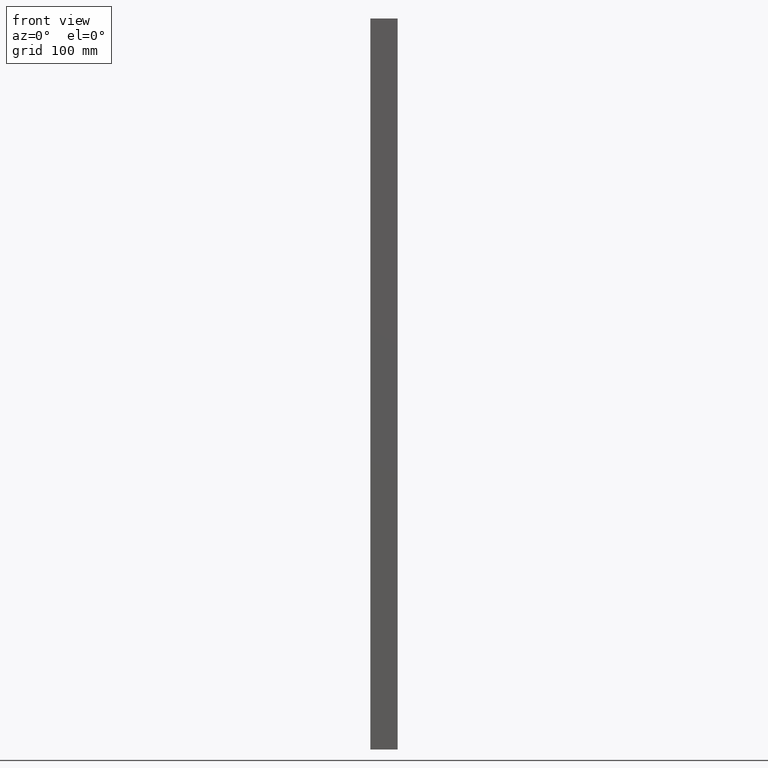
[diagram: clean part render]
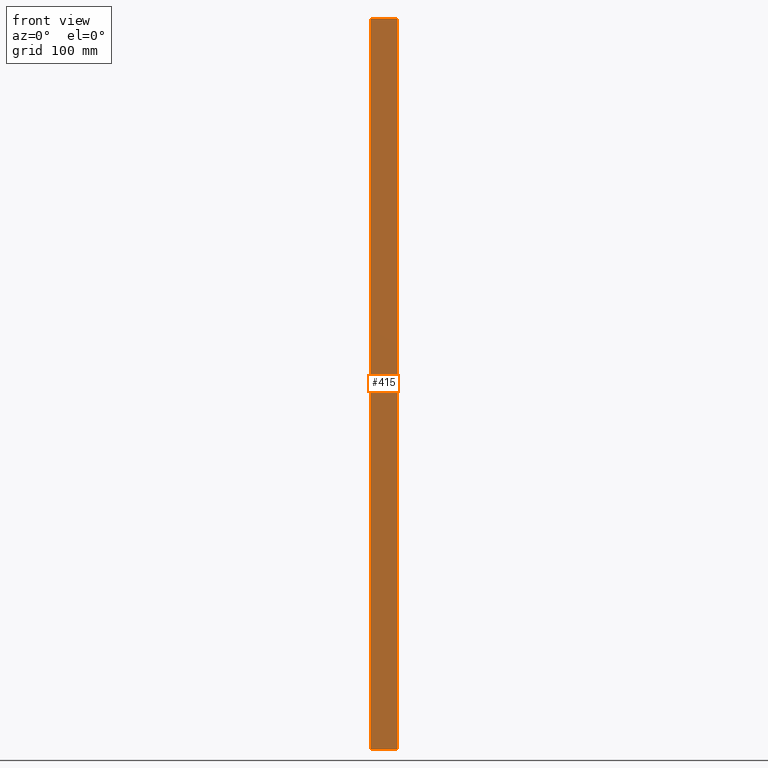
[diagram: same view with one face highlighted and labeled with its STEP entity id]
A machine part, front view. The second image highlights one B-rep face of the part: STEP entity #415.
In plain terms, the highlighted planar face has unit normal (0, 1, 0).
Its self-contained STEP definition (entity closure, byte-faithful):
#84 = EDGE_LOOP ( 'NONE', ( #97, #102, #132, #99 ) ) ;
#97 = ORIENTED_EDGE ( 'NONE', *, *, #352, .F. ) ;
#99 = ORIENTED_EDGE ( 'NONE', *, *, #371, .T. ) ;
#102 = ORIENTED_EDGE ( 'NONE', *, *, #392, .T. ) ;
#132 = ORIENTED_EDGE ( 'NONE', *, *, #398, .T. ) ;
#140 = DIRECTION ( 'NONE',  ( 0.0000000000000000000, -0.0000000000000000000, 1.000000000000000000 ) ) ;
#148 = DIRECTION ( 'NONE',  ( 0.0000000000000000000, 1.000000000000000000, 0.0000000000000000000 ) ) ;
#170 = PLANE ( 'NONE',  #688 ) ;
#173 = FACE_OUTER_BOUND ( 'NONE', #84, .T. ) ;
#176 = CARTESIAN_POINT ( 'NONE',  ( 51.73745546312871800, 0.0000000000000000000, 1000.000000000000000 ) ) ;
#199 = LINE ( 'NONE', #237, #668 ) ;
#229 = DIRECTION ( 'NONE',  ( 1.000000000000000000, 0.0000000000000000000, 0.0000000000000000000 ) ) ;
#237 = CARTESIAN_POINT ( 'NONE',  ( 51.73745546312871800, 0.0000000000000000000, 1000.000000000000000 ) ) ;
#243 = VERTEX_POINT ( 'NONE', #286 ) ;
#248 = VERTEX_POINT ( 'NONE', #275 ) ;
#257 = VERTEX_POINT ( 'NONE', #333 ) ;
#275 = CARTESIAN_POINT ( 'NONE',  ( 52.23745546312871800, 0.0000000000000000000, 1000.000000000000000 ) ) ;
#286 = CARTESIAN_POINT ( 'NONE',  ( 52.23745546312871800, 0.0000000000000000000, 0.0000000000000000000 ) ) ;
#291 = VERTEX_POINT ( 'NONE', #326 ) ;
#326 = CARTESIAN_POINT ( 'NONE',  ( 88.63745546312873100, 0.0000000000000000000, 1000.000000000000000 ) ) ;
#333 = CARTESIAN_POINT ( 'NONE',  ( 88.63745546312873100, 0.0000000000000000000, 0.0000000000000000000 ) ) ;
#352 = EDGE_CURVE ( 'NONE', #248, #291, #199, .T. ) ;
#371 = EDGE_CURVE ( 'NONE', #257, #291, #444, .T. ) ;
#392 = EDGE_CURVE ( 'NONE', #248, #243, #501, .T. ) ;
#398 = EDGE_CURVE ( 'NONE', #243, #257, #776, .T. ) ;
#415 = ADVANCED_FACE ( 'NONE', ( #173 ), #170, .F. ) ;
#442 = CARTESIAN_POINT ( 'NONE',  ( 88.63745546312873100, 0.0000000000000000000, 1000.000000000000000 ) ) ;
#444 = LINE ( 'NONE', #442, #682 ) ;
#454 = DIRECTION ( 'NONE',  ( -0.0000000000000000000, -0.0000000000000000000, 1.000000000000000000 ) ) ;
#499 = DIRECTION ( 'NONE',  ( 0.0000000000000000000, 0.0000000000000000000, -1.000000000000000000 ) ) ;
#501 = LINE ( 'NONE', #511, #710 ) ;
#511 = CARTESIAN_POINT ( 'NONE',  ( 52.23745546312871800, 0.0000000000000000000, 1000.000000000000000 ) ) ;
#668 = VECTOR ( 'NONE', #229, 1000.000000000000000 ) ;
#682 = VECTOR ( 'NONE', #454, 1000.000000000000000 ) ;
#688 = AXIS2_PLACEMENT_3D ( 'NONE', #176, #148, #140 ) ;
#710 = VECTOR ( 'NONE', #499, 1000.000000000000000 ) ;
#722 = VECTOR ( 'NONE', #792, 1000.000000000000000 ) ;
#772 = CARTESIAN_POINT ( 'NONE',  ( 51.73745546312871800, 0.0000000000000000000, 0.0000000000000000000 ) ) ;
#776 = LINE ( 'NONE', #772, #722 ) ;
#792 = DIRECTION ( 'NONE',  ( 1.000000000000000000, 0.0000000000000000000, 0.0000000000000000000 ) ) ;